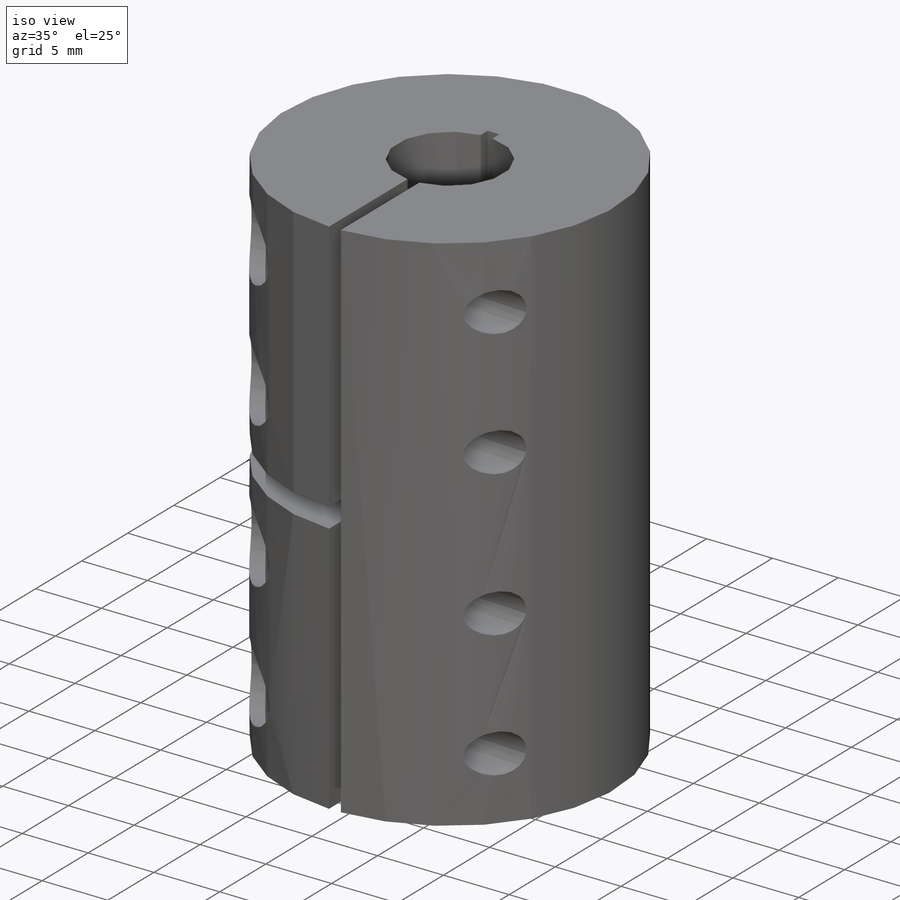
[diagram: iso view]
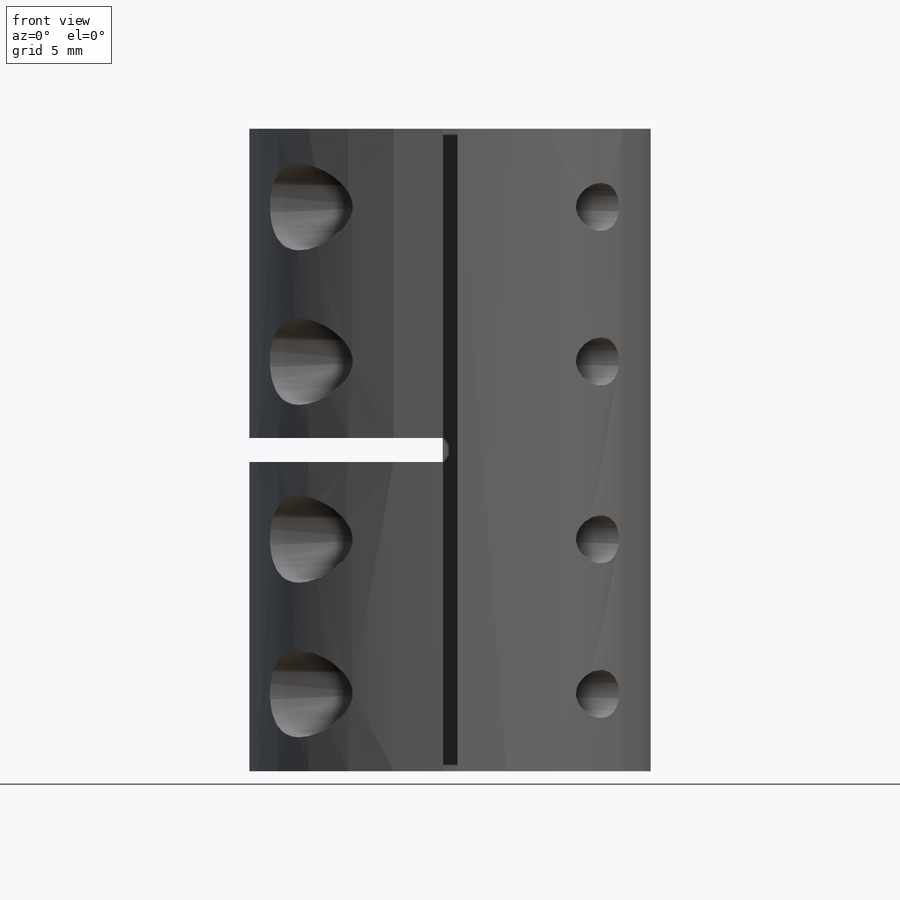
[diagram: front view]
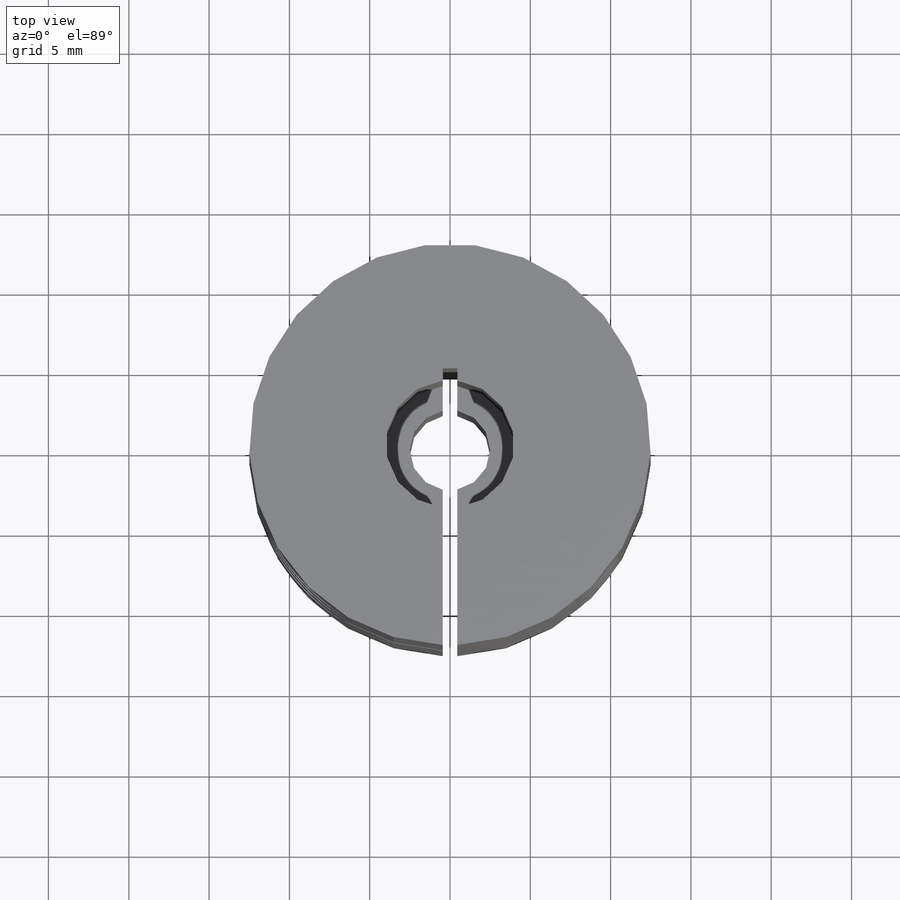
[diagram: top view]
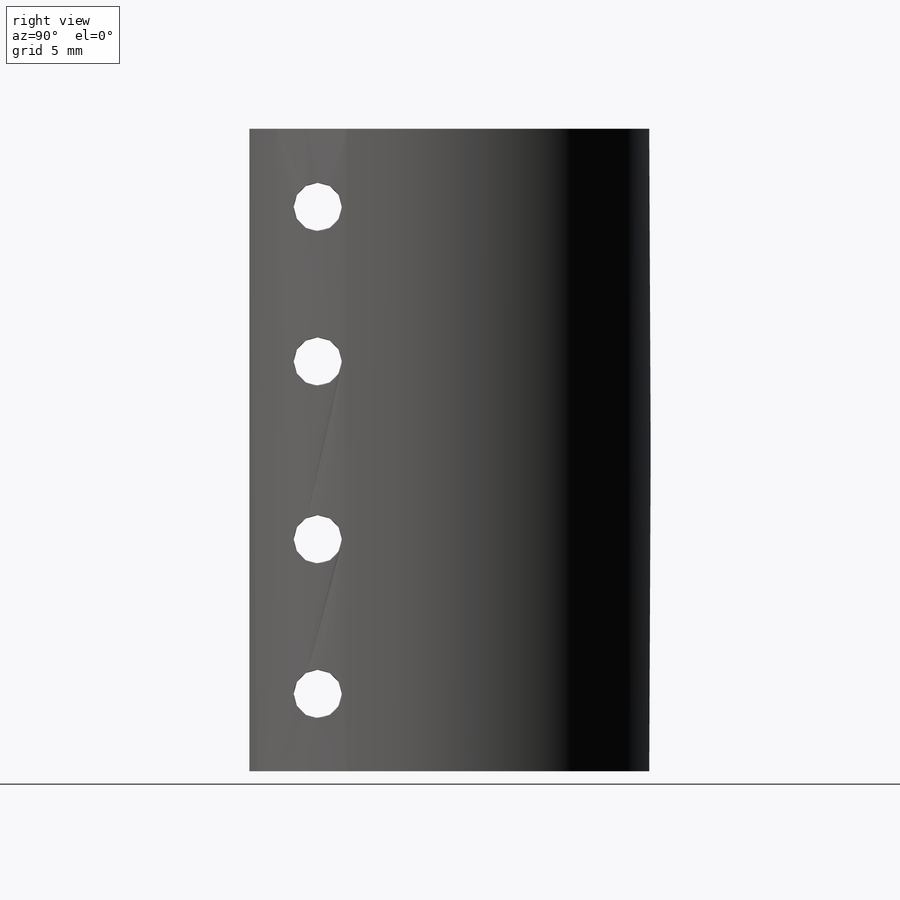
[diagram: right view]
SOLIDWORKS PART (.sldprt)
format: sldprt  version: not decoded by parser v0  size: 294,912 bytes
history: native  units: mm
features: sketch x7, cut_extrude x6, plane x3, material x1, extrude x1 (+9 scaffold rows collapsed)
feature tree (27):
  scaffold x9  (default folders/planes/origin — collapsed)
  material  "Материал <не указан>"
  plane  "Спереди"
  plane  "Сверху"
  plane  "Справа"
  sketch  "Эскиз1"  dims[D1=25.0mm]
  extrude  "Бобышка-Вытянуть1"  Depth=40mm
  sketch  "Эскиз2"  dims[D1=8.0mm]
  cut_extrude  "Вырез-Вытянуть1"  Depth=20mm
  sketch  "Эскиз3"  dims[D1=5.0mm]
  cut_extrude  "Вырез-Вытянуть2"  Depth=20mm
  sketch  "Эскиз4"  dims[c1.D1=~21.636533mm c1.D2=~1.111896mm c2.D1=~23.616461mm c2.D2=~0.896828mm]
  cut_extrude  "Вырез-Вытянуть3"  [1 undecoded]
  sketch  "Эскиз5"  dims[c1.D1=1.5mm c1.D2=54.48mm c2.D1=1.5mm]
  cut_extrude  "Вырез-Вытянуть4"  Depth=20mm
  sketch  "Эскиз6"  dims[c1.D1=3.0mm c1.D2=3.0mm c1.D3=3.0mm c1.D4=3.0mm c2.D1=~3.49594mm]
  cut_extrude  "Вырез-Вытянуть5"  Depth=20mm
  sketch  "Эскиз7"  dims[D1=5.4mm D2=5.4mm D3=5.4mm D4=5.4mm]
  cut_extrude  "Вырез-Вытянуть6"  Depth=20mm
decode coverage: 13 of 14 modeling features carry decoded parameters
note: ~ marks probable driven/reference dimensions
note: 1 parameter value undecoded
note: suppression state not decoded; provenance and decode notes live in map.json
